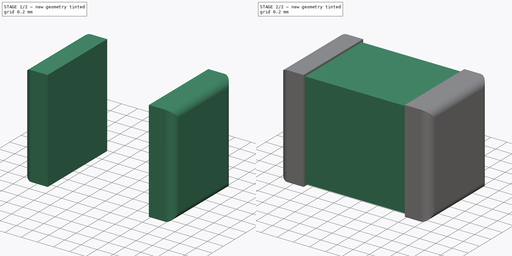
[diagram: build sequence overview — one tinted view per stage of 2, left to right]
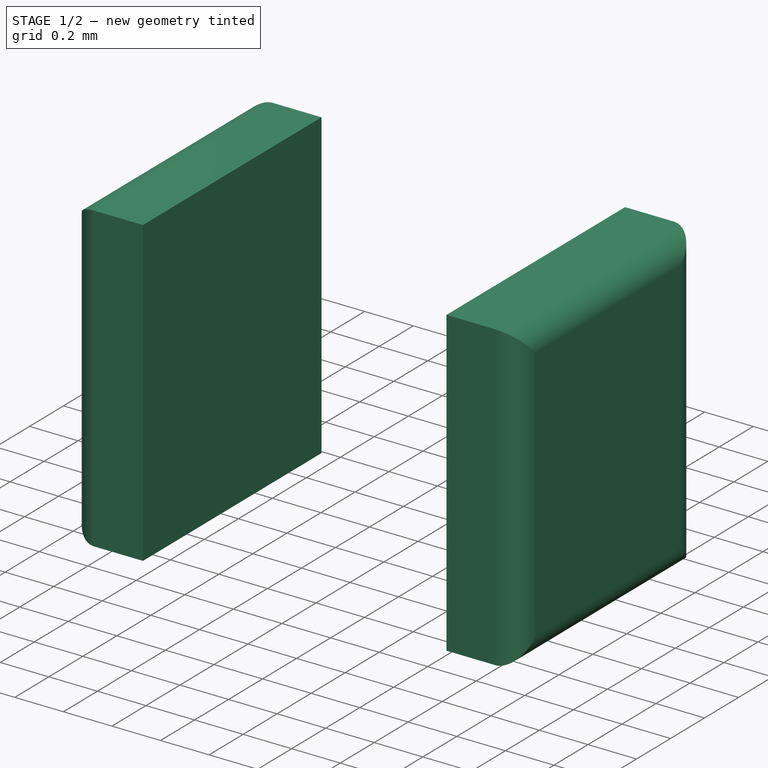
[diagram: stage 1 of 2 — iso view after this stage's code; geometry added in this stage tinted green]
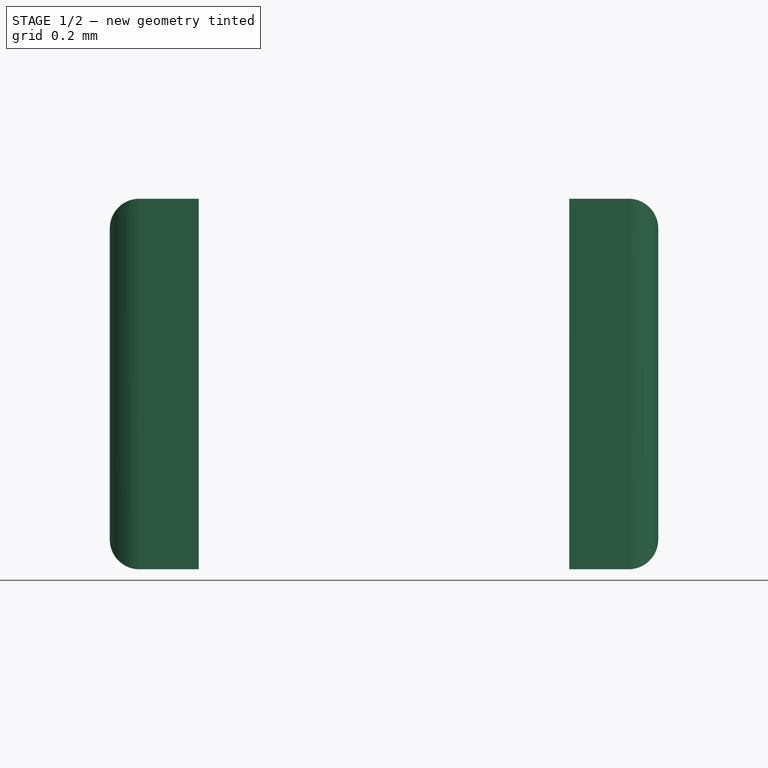
[diagram: stage 1 of 2 — front view after this stage's code; geometry added in this stage tinted green]
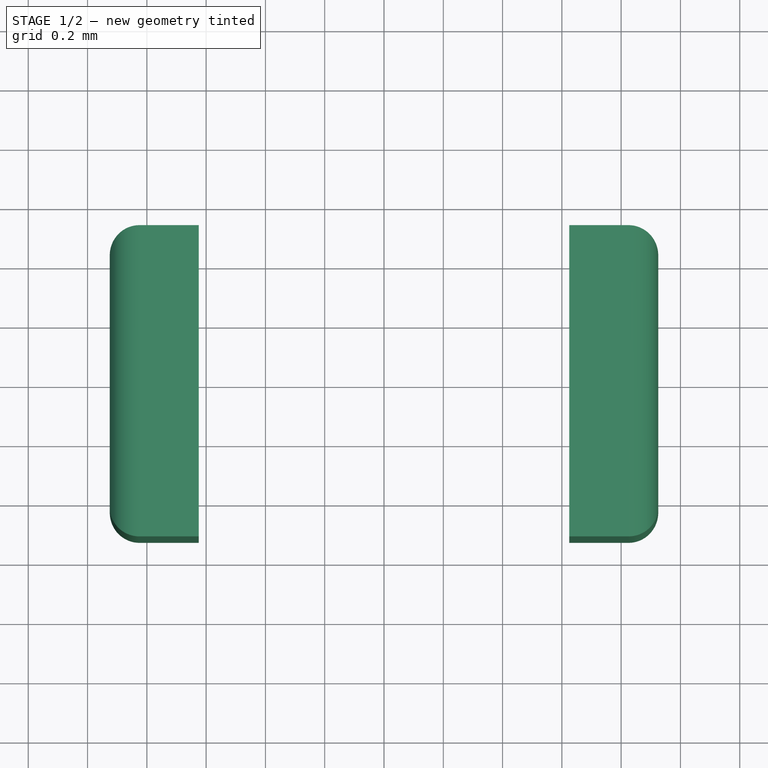
[diagram: stage 1 of 2 — top view after this stage's code; geometry added in this stage tinted green]
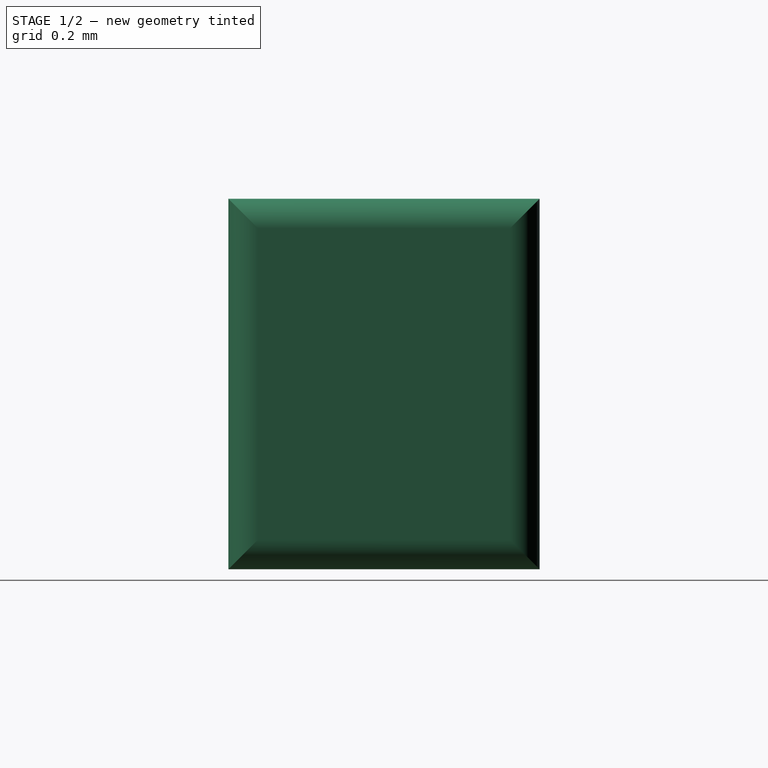
[diagram: stage 1 of 2 — right view after this stage's code; geometry added in this stage tinted green]
FCSTD DOCUMENT  (FreeCAD 0.18R4 (GitTag))
Label: CAP-0603
License: All rights reserved
LicenseURL: http://en.wikipedia.org/wiki/All_rights_reserved
objects: Sketcher::SketchObject×2, Part::Extrusion×2, PartDesign::Body×1, Part::Fillet×1
note: 6 computed .brp shape members not serialized (recipe doc carries the construction recipe); baked Part::Feature solids carry a one-line shape summary decoded from their .brp

FEATURE [Sketcher::SketchObject] Sketch  label="Pin-Sketch"
  MapMode = 5
  Support = -> [XY_Plane]
  sketch-geometry (8):
    g0: LineSegment StartX=-0.925 StartY=0.525 StartZ=0 EndX=-0.625 EndY=0.525 EndZ=0
    g1: LineSegment StartX=-0.625 StartY=0.525 StartZ=0 EndX=-0.625 EndY=-0.525 EndZ=0
    g2: LineSegment StartX=-0.625 StartY=-0.525 StartZ=0 EndX=-0.925 EndY=-0.525 EndZ=0
    g3: LineSegment StartX=-0.925 StartY=-0.525 StartZ=0 EndX=-0.925 EndY=0.525 EndZ=0
    g4: LineSegment StartX=0.625 StartY=0.525 StartZ=0 EndX=0.925 EndY=0.525 EndZ=0
    g5: LineSegment StartX=0.925 StartY=0.525 StartZ=0 EndX=0.925 EndY=-0.525 EndZ=0
    g6: LineSegment StartX=0.925 StartY=-0.525 StartZ=0 EndX=0.625 EndY=-0.525 EndZ=0
    g7: LineSegment StartX=0.625 StartY=-0.525 StartZ=0 EndX=0.625 EndY=0.525 EndZ=0
  constraints (22):
    c: Coincident(g0,g1)
    c: Coincident(g1,g2)
    c: Coincident(g2,g3)
    c: Coincident(g3,g0)
    c: Horizontal(g0)
    c: Horizontal(g2)
    c: Vertical(g3)
    c: Coincident(g4,g5)
    c: Coincident(g5,g6)
    c: Coincident(g6,g7)
    c: Coincident(g7,g4)
    c: Horizontal(g4)
    c: Horizontal(g6)
    c: Vertical(g5)
    c: Vertical(g7)
    c: DistanceY(g3,g3) = 1.05
    c: DistanceX(g2,g2) = 0.3
    c: Symmetric(g0,g1,g-1)
    c: Equal(g7,g1)
    c: Equal(g4,g0)
    c: Symmetric(g6,g1,g-2)
    c: DistanceX(g2,g5) = 1.85
FEATURE [Part::Extrusion] Extrude  label="Pin"
  Base = -> Sketch
  Dir = (0,0,1)
  DirMode = 2
  FaceMakerClass = Part::FaceMakerBullseye
  LengthFwd = 1.25
  LengthRev = 0
  Solid = true
  Symmetric = false
FEATURE [Part::Fillet] Fillet
  Base = -> Extrude
  Edges = 8 edges r=0.1: [Edge2,Edge5,Edge6,Edge7,Edge13,Edge20,Edge23,Edge24]
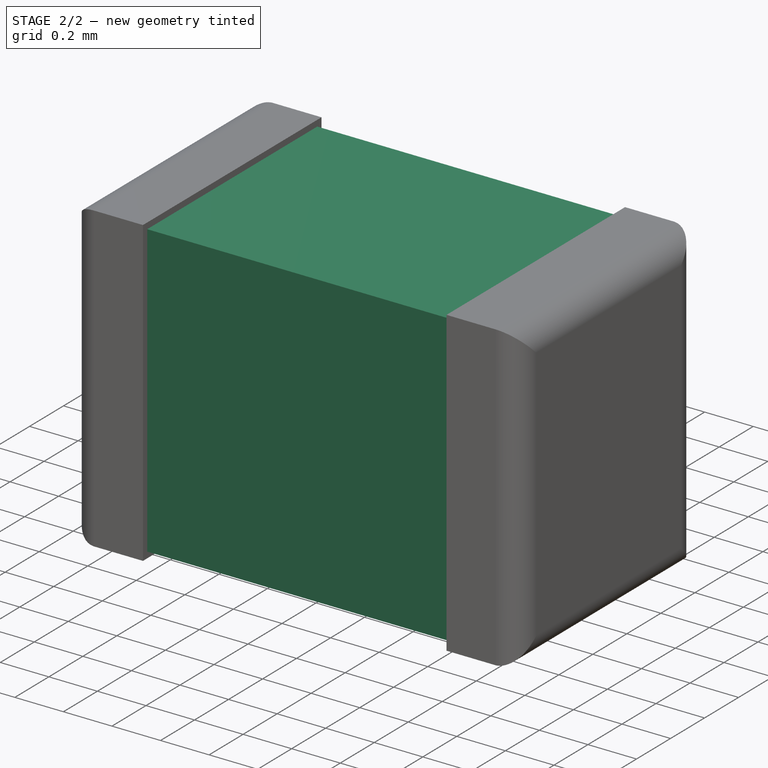
[diagram: stage 2 of 2 — iso view after this stage's code; geometry added in this stage tinted green]
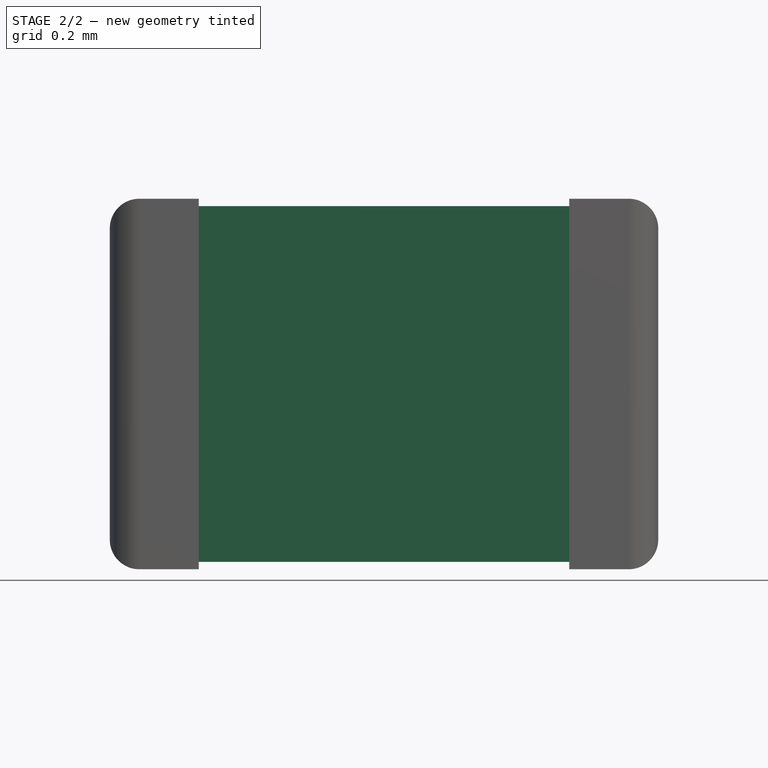
[diagram: stage 2 of 2 — front view after this stage's code; geometry added in this stage tinted green]
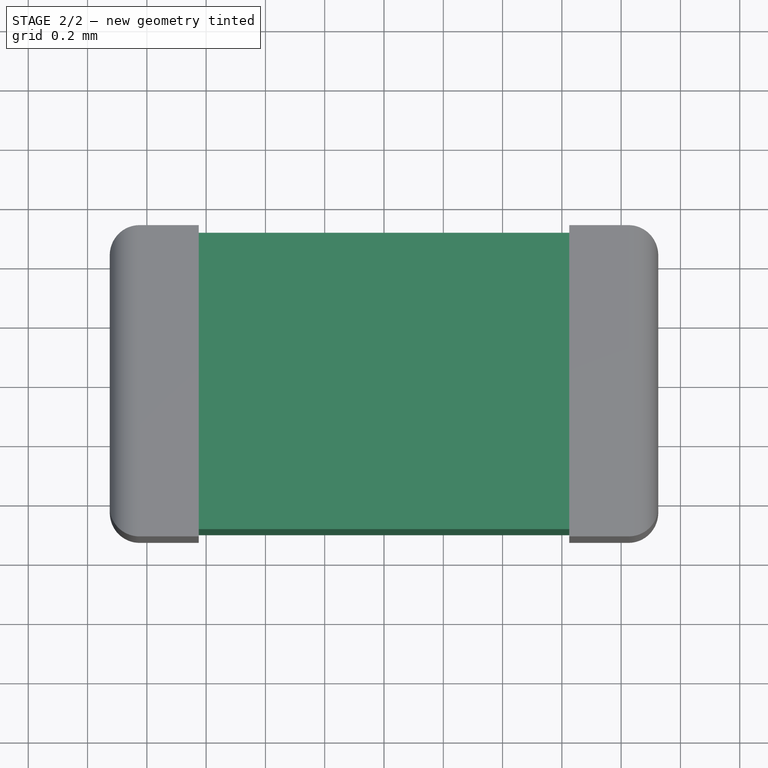
[diagram: stage 2 of 2 — top view after this stage's code; geometry added in this stage tinted green]
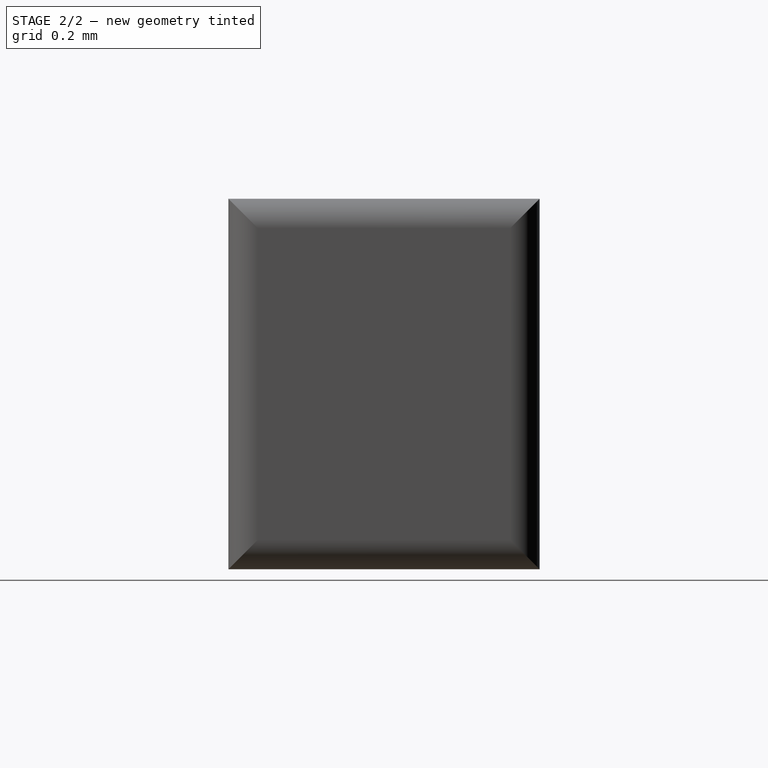
[diagram: stage 2 of 2 — right view after this stage's code; geometry added in this stage tinted green]
FEATURE [Sketcher::SketchObject] Sketch001  label="body-Sketch"
  AttachmentOffset = pos=(0,0,0.025) rot=(0,0,1;0rad)
  MapMode = 5
  Placement = pos=(0,0,0.025) rot=(0,0,1;0rad)
  Support = -> [XY_Plane]
  sketch-geometry (4):
    g0: LineSegment StartX=-0.65 StartY=0.5 StartZ=0 EndX=0.65 EndY=0.5 EndZ=0
    g1: LineSegment StartX=0.65 StartY=0.5 StartZ=0 EndX=0.65 EndY=-0.5 EndZ=0
    g2: LineSegment StartX=0.65 StartY=-0.5 StartZ=0 EndX=-0.65 EndY=-0.5 EndZ=0
    g3: LineSegment StartX=-0.65 StartY=-0.5 StartZ=0 EndX=-0.65 EndY=0.5 EndZ=0
  constraints (10):
    c: Coincident(g0,g1)
    c: Coincident(g1,g2)
    c: Coincident(g2,g3)
    c: Coincident(g3,g0)
    c: Horizontal(g2)
    c: Vertical(g1)
    c: DistanceY(g1,g1) = 1
    c: DistanceX(g0,g0) = 1.3
    c: Symmetric(g0,g0,g-2)
    c: Symmetric(g2,g0,g-1)
FEATURE [PartDesign::Body] Body
  Group = -> [Sketch,Sketch001]
  Origin = -> Origin
FEATURE [Part::Extrusion] Extrude001  label="Body-Extr"
  Base = -> Sketch001
  Dir = (0,0,1)
  DirMode = 2
  FaceMakerClass = Part::FaceMakerBullseye
  LengthFwd = 1.2
  LengthRev = 0
  Solid = true
  Symmetric = false
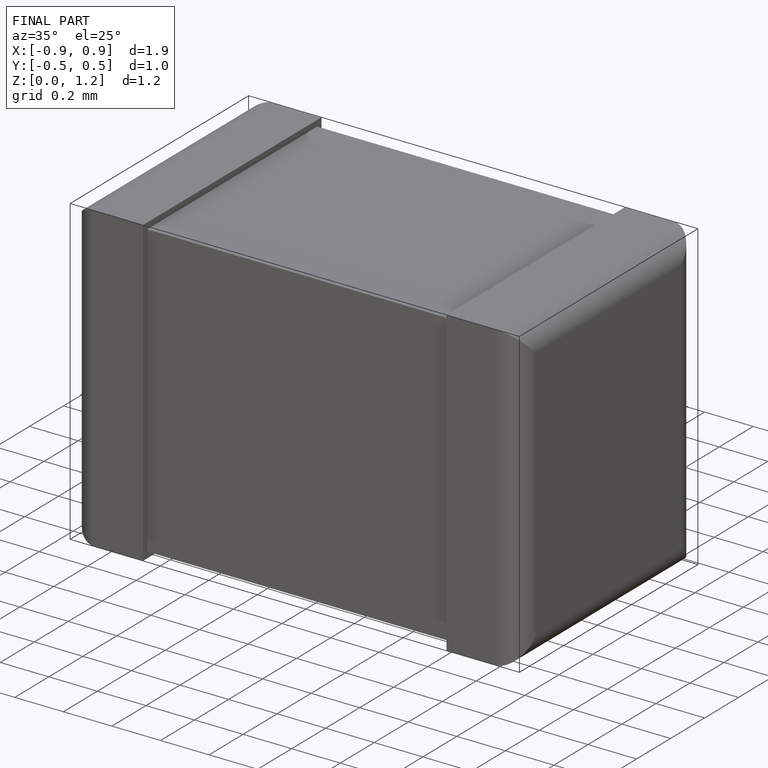
[diagram: finished part — iso view with bounding-box wireframe]
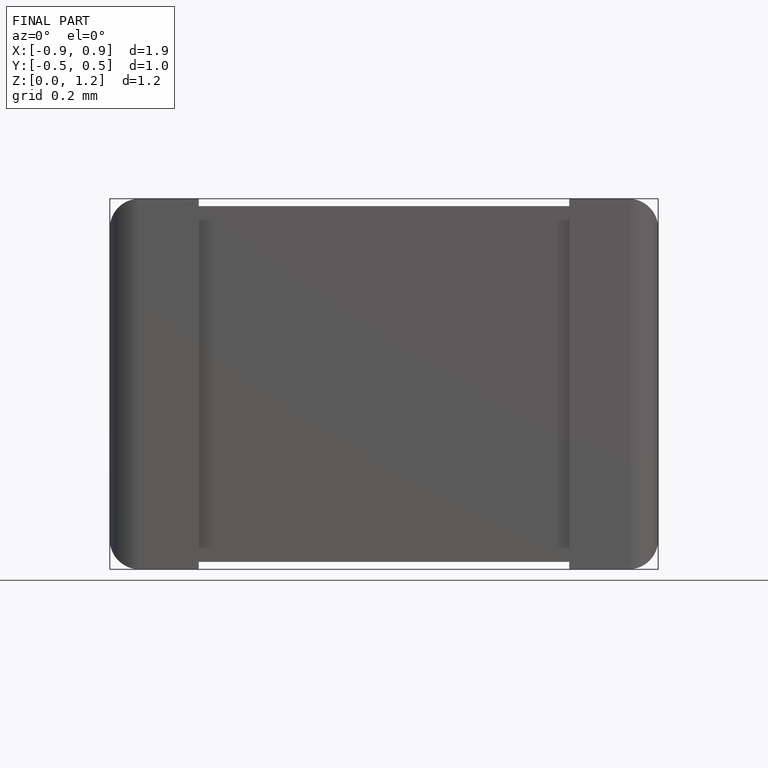
[diagram: finished part — front view with bounding-box wireframe]
